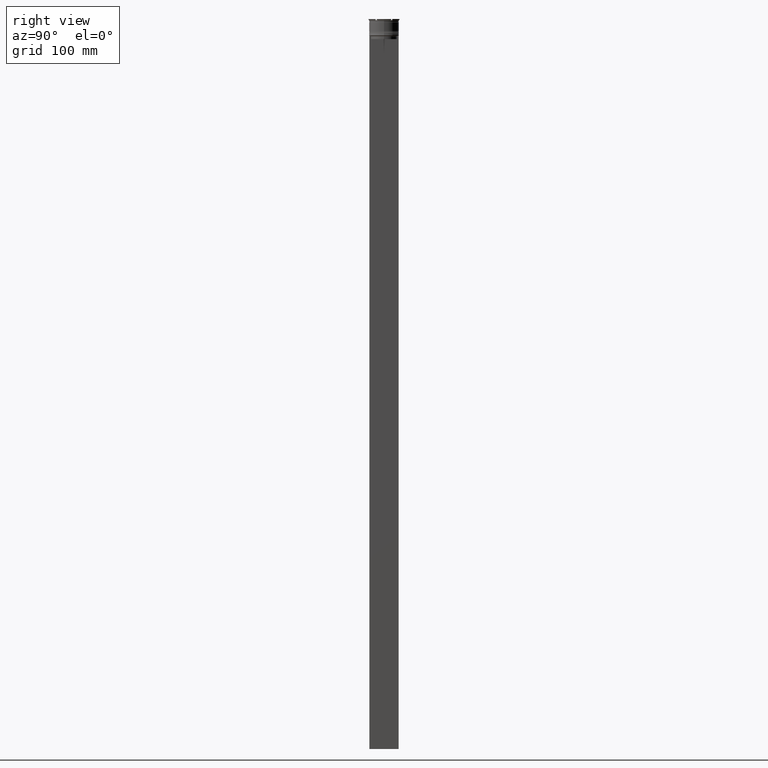
[diagram: clean part render]
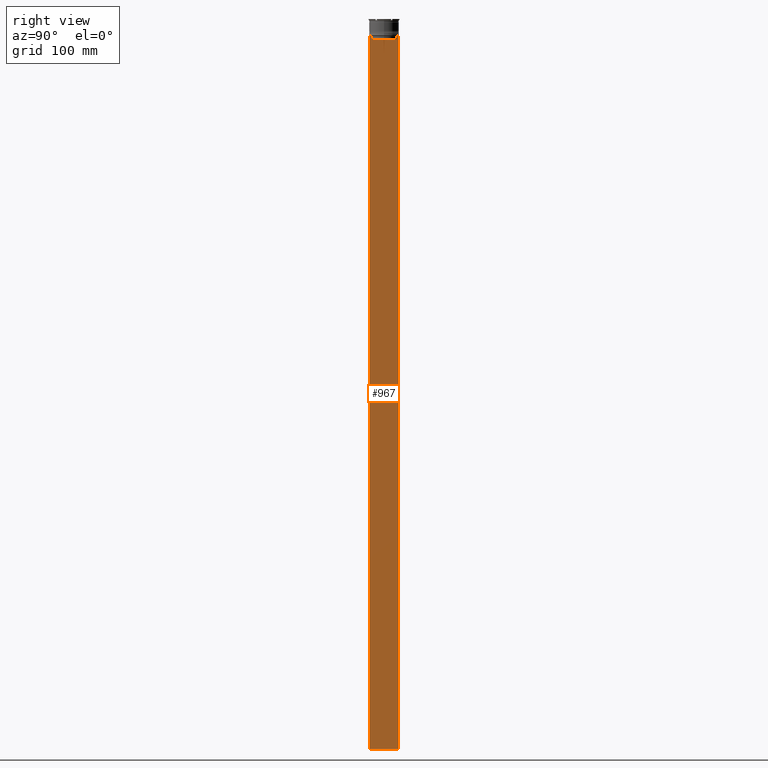
[diagram: same view with one face highlighted and labeled with its STEP entity id]
A machine part, right view. The second image highlights one B-rep face of the part: STEP entity #967.
In plain terms, the highlighted planar face has unit normal (-1, 0, 0).
Its self-contained STEP definition (entity closure, byte-faithful):
#5 = ORIENTED_EDGE ( 'NONE', *, *, #2187, .T. ) ;
#9 = EDGE_CURVE ( 'NONE', #704, #580, #2332, .T. ) ;
#98 = DIRECTION ( 'NONE',  ( 0.000000000000000000, 0.000000000000000000, -1.000000000000000000 ) ) ;
#172 = EDGE_CURVE ( 'NONE', #1824, #803, #1842, .T. ) ;
#328 = EDGE_CURVE ( 'NONE', #580, #1501, #1264, .T. ) ;
#335 = VERTEX_POINT ( 'NONE', #2299 ) ;
#340 = LINE ( 'NONE', #1158, #1447 ) ;
#385 = EDGE_CURVE ( 'NONE', #1501, #1528, #2116, .T. ) ;
#393 = DIRECTION ( 'NONE',  ( 0.000000000000000000, 0.000000000000000000, -1.000000000000000000 ) ) ;
#430 = LINE ( 'NONE', #876, #1171 ) ;
#484 = EDGE_LOOP ( 'NONE', ( #2723, #1749, #1396, #538, #517, #5, #2009, #1232, #1276, #893 ) ) ;
#492 = EDGE_CURVE ( 'NONE', #1572, #803, #430, .T. ) ;
#512 = VERTEX_POINT ( 'NONE', #2589 ) ;
#517 = ORIENTED_EDGE ( 'NONE', *, *, #385, .T. ) ;
#538 = ORIENTED_EDGE ( 'NONE', *, *, #328, .T. ) ;
#578 = DIRECTION ( 'NONE',  ( -1.000000000000000000, 0.000000000000000000, 0.000000000000000000 ) ) ;
#580 = VERTEX_POINT ( 'NONE', #1634 ) ;
#670 = EDGE_CURVE ( 'NONE', #1824, #512, #1394, .T. ) ;
#693 = CARTESIAN_POINT ( 'NONE',  ( 0.5000000000000002220, -11.38902980942626719, -14.00000000000000178 ) ) ;
#704 = VERTEX_POINT ( 'NONE', #2767 ) ;
#708 = CARTESIAN_POINT ( 'NONE',  ( 0.5000000000000002220, -12.25000000000000711, -14.00000000000000178 ) ) ;
#784 = CARTESIAN_POINT ( 'NONE',  ( 0.5000000000000002220, -12.25000000000000711, 10.52039967047845792 ) ) ;
#803 = VERTEX_POINT ( 'NONE', #1473 ) ;
#806 = VECTOR ( 'NONE', #1908, 1000.000000000000000 ) ;
#861 = CARTESIAN_POINT ( 'NONE',  ( 0.5000000000000002220, -12.25000000000000711, -614.0000000000000000 ) ) ;
#876 = CARTESIAN_POINT ( 'NONE',  ( 0.5000000000000002220, -12.25000000000000711, -614.0000000000000000 ) ) ;
#893 = ORIENTED_EDGE ( 'NONE', *, *, #172, .F. ) ;
#963 = CARTESIAN_POINT ( 'NONE',  ( 0.5000000000000002220, -12.25000000000000711, -14.00000000000000178 ) ) ;
#967 = ADVANCED_FACE ( 'NONE', ( #2292 ), #2051, .F. ) ;
#1025 = CARTESIAN_POINT ( 'NONE',  ( 0.5000000000000002220, 10.88852607105296322, 0.000000000000000000 ) ) ;
#1158 = CARTESIAN_POINT ( 'NONE',  ( 0.5000000000000002220, -12.25000000000000711, 10.52039967047845792 ) ) ;
#1171 = VECTOR ( 'NONE', #1727, 1000.000000000000000 ) ;
#1173 = CARTESIAN_POINT ( 'NONE',  ( 0.5000000000000002220, 11.38902980942626719, -14.00000000000000178 ) ) ;
#1186 = DIRECTION ( 'NONE',  ( 0.000000000000000000, 0.000000000000000000, -1.000000000000000000 ) ) ;
#1222 = DIRECTION ( 'NONE',  ( 0.000000000000000000, 0.000000000000000000, 1.000000000000000000 ) ) ;
#1232 = ORIENTED_EDGE ( 'NONE', *, *, #1492, .T. ) ;
#1264 = LINE ( 'NONE', #2147, #806 ) ;
#1276 = ORIENTED_EDGE ( 'NONE', *, *, #492, .T. ) ;
#1394 = LINE ( 'NONE', #2277, #2482 ) ;
#1396 = ORIENTED_EDGE ( 'NONE', *, *, #9, .T. ) ;
#1421 = CARTESIAN_POINT ( 'NONE',  ( 0.5000000000000002220, 12.24999999999999289, -14.00000000000000178 ) ) ;
#1447 = VECTOR ( 'NONE', #1186, 1000.000000000000000 ) ;
#1453 = CARTESIAN_POINT ( 'NONE',  ( 0.5000000000000002220, -10.88852607105296322, 0.000000000000000000 ) ) ;
#1473 = CARTESIAN_POINT ( 'NONE',  ( 0.5000000000000002220, 12.24999999999999289, -614.0000000000000000 ) ) ;
#1492 = EDGE_CURVE ( 'NONE', #1928, #1572, #340, .T. ) ;
#1499 = EDGE_CURVE ( 'NONE', #512, #704, #2228, .T. ) ;
#1501 = VERTEX_POINT ( 'NONE', #2476 ) ;
#1522 = CARTESIAN_POINT ( 'NONE',  ( 0.5000000000000002220, -10.88852607105296322, -14.50000000000000000 ) ) ;
#1528 = VERTEX_POINT ( 'NONE', #2318 ) ;
#1571 = B_SPLINE_CURVE_WITH_KNOTS ( 'NONE', 3,
 ( #1522, #1754, #2629, #693 ),
 .UNSPECIFIED., .F., .F.,
 ( 4, 4 ),
 ( 0.05041323384703228633, 0.05112713601261608537 ),
 .UNSPECIFIED. ) ;
#1572 = VERTEX_POINT ( 'NONE', #861 ) ;
#1610 = CARTESIAN_POINT ( 'NONE',  ( 0.5000000000000002220, 11.05536450345590538, -14.33333719074559376 ) ) ;
#1634 = CARTESIAN_POINT ( 'NONE',  ( 0.5000000000000002220, 10.88852607105296144, -17.00000000000000000 ) ) ;
#1685 = EDGE_CURVE ( 'NONE', #335, #1928, #2616, .T. ) ;
#1727 = DIRECTION ( 'NONE',  ( 0.000000000000000000, 1.000000000000000000, 0.000000000000000000 ) ) ;
#1749 = ORIENTED_EDGE ( 'NONE', *, *, #1499, .T. ) ;
#1754 = CARTESIAN_POINT ( 'NONE',  ( 0.5000000000000002220, -11.05536450423839057, -14.33333718996393280 ) ) ;
#1824 = VERTEX_POINT ( 'NONE', #1421 ) ;
#1842 = LINE ( 'NONE', #2289, #2213 ) ;
#1908 = DIRECTION ( 'NONE',  ( 0.000000000000000000, -1.000000000000000000, 0.000000000000000000 ) ) ;
#1928 = VERTEX_POINT ( 'NONE', #963 ) ;
#1959 = DIRECTION ( 'NONE',  ( 0.000000000000000000, -1.000000000000000000, 0.000000000000000000 ) ) ;
#1997 = AXIS2_PLACEMENT_3D ( 'NONE', #784, #578, #1222 ) ;
#2009 = ORIENTED_EDGE ( 'NONE', *, *, #1685, .T. ) ;
#2047 = CARTESIAN_POINT ( 'NONE',  ( 0.5000000000000002220, 11.22219891375843304, -14.16667035472756808 ) ) ;
#2051 = PLANE ( 'NONE',  #1997 ) ;
#2054 = DIRECTION ( 'NONE',  ( 0.000000000000000000, -1.000000000000000000, 0.000000000000000000 ) ) ;
#2116 = LINE ( 'NONE', #1453, #2665 ) ;
#2147 = CARTESIAN_POINT ( 'NONE',  ( 0.5000000000000002220, 10.90000000000000213, -17.00000000000000000 ) ) ;
#2187 = EDGE_CURVE ( 'NONE', #1528, #335, #1571, .T. ) ;
#2213 = VECTOR ( 'NONE', #98, 1000.000000000000000 ) ;
#2228 = B_SPLINE_CURVE_WITH_KNOTS ( 'NONE', 3,
 ( #1173, #2047, #1610, #2492 ),
 .UNSPECIFIED., .F., .F.,
 ( 4, 4 ),
 ( 0.01935560801904634073, 0.02006307108468586772 ),
 .UNSPECIFIED. ) ;
#2277 = CARTESIAN_POINT ( 'NONE',  ( 0.5000000000000002220, -12.25000000000000711, -14.00000000000000178 ) ) ;
#2289 = CARTESIAN_POINT ( 'NONE',  ( 0.5000000000000002220, 12.24999999999999289, 10.52039967047845792 ) ) ;
#2292 = FACE_OUTER_BOUND ( 'NONE', #484, .T. ) ;
#2299 = CARTESIAN_POINT ( 'NONE',  ( 0.5000000000000002220, -11.38902980942626719, -14.00000000000000178 ) ) ;
#2317 = DIRECTION ( 'NONE',  ( -0.000000000000000000, -0.000000000000000000, 1.000000000000000000 ) ) ;
#2318 = CARTESIAN_POINT ( 'NONE',  ( 0.5000000000000002220, -10.88852607105296322, -14.50000000000000000 ) ) ;
#2332 = LINE ( 'NONE', #1025, #2659 ) ;
#2476 = CARTESIAN_POINT ( 'NONE',  ( 0.5000000000000002220, -10.88852607105296144, -17.00000000000000000 ) ) ;
#2482 = VECTOR ( 'NONE', #2054, 1000.000000000000000 ) ;
#2492 = CARTESIAN_POINT ( 'NONE',  ( 0.5000000000000002220, 10.88852607105296322, -14.50000000000000000 ) ) ;
#2589 = CARTESIAN_POINT ( 'NONE',  ( 0.5000000000000002220, 11.38902980942626719, -14.00000000000000178 ) ) ;
#2616 = LINE ( 'NONE', #708, #2630 ) ;
#2629 = CARTESIAN_POINT ( 'NONE',  ( 0.5000000000000002220, -11.22219891450652973, -14.16667035398018903 ) ) ;
#2630 = VECTOR ( 'NONE', #1959, 1000.000000000000000 ) ;
#2659 = VECTOR ( 'NONE', #393, 1000.000000000000000 ) ;
#2665 = VECTOR ( 'NONE', #2317, 1000.000000000000000 ) ;
#2723 = ORIENTED_EDGE ( 'NONE', *, *, #670, .T. ) ;
#2767 = CARTESIAN_POINT ( 'NONE',  ( 0.5000000000000002220, 10.88852607105296322, -14.50000000000000000 ) ) ;